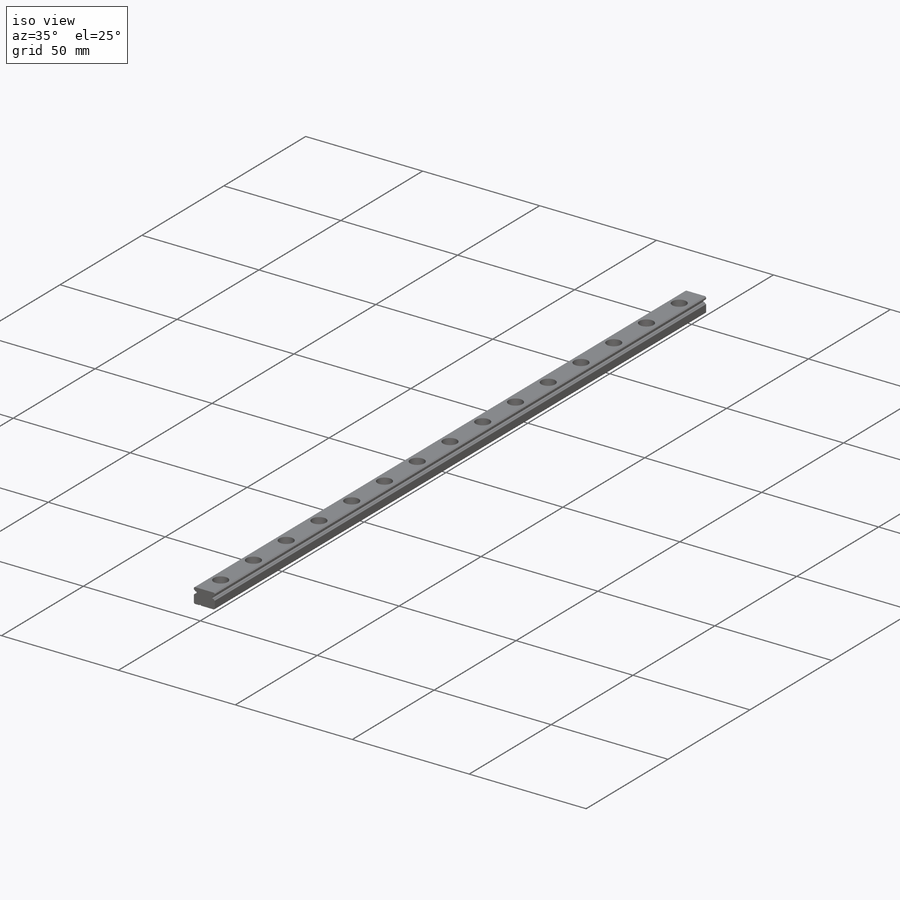
[diagram: iso view]
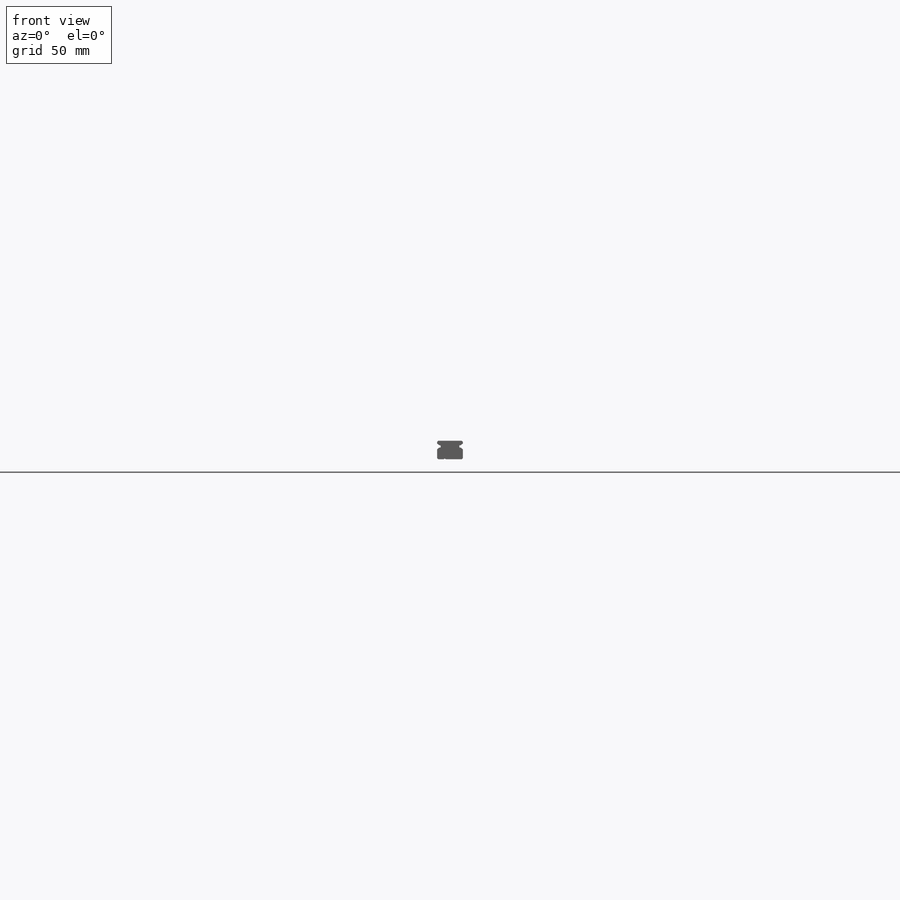
[diagram: front view]
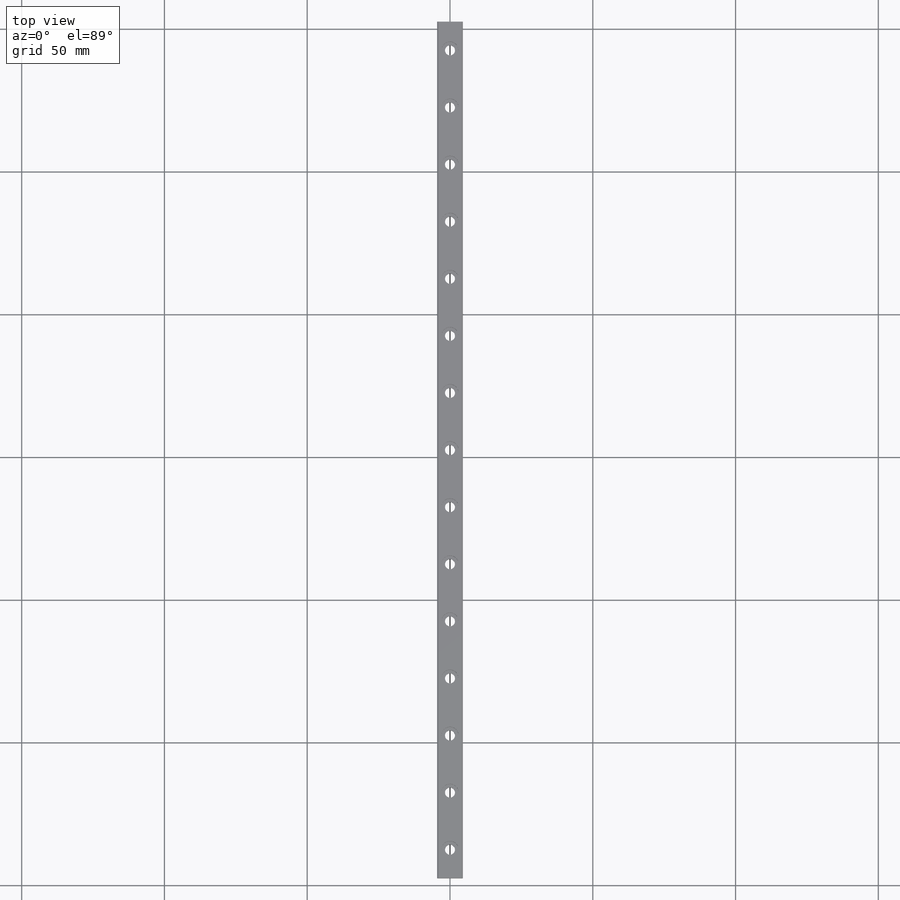
[diagram: top view]
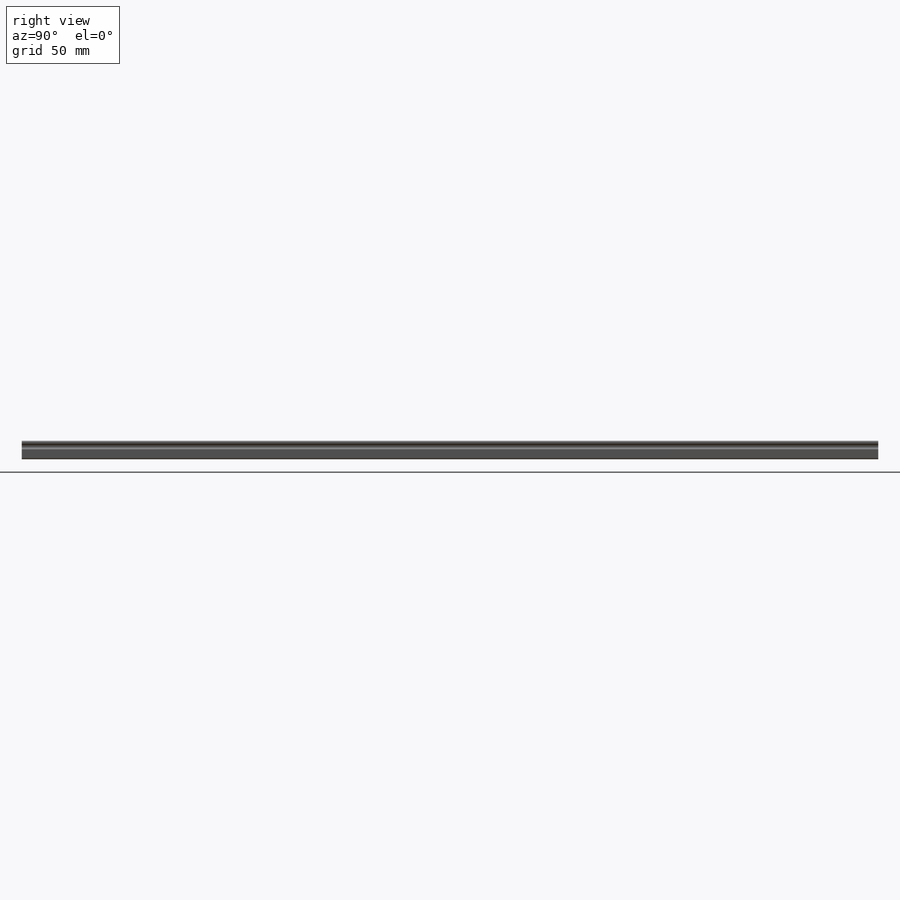
[diagram: right view]
SOLIDWORKS PART (.sldprt)
format: sldprt  version: not decoded by parser v0  size: 432,640 bytes
history: native  units: mm
features: sketch x10, cut_extrude x6, extrude x2, material x1, plane x1, hole x1, chamfer x1, fillet x1 (+13 scaffold rows collapsed)
feature tree (36):
  scaffold x13  (default folders/planes/origin — collapsed)
  material  "Material <not specified>"
  plane  "Plane1"  Offset=300mm
  sketch  "Sketch1"
  extrude  "Boss-Extrude1"  Depth=600mm
  sketch  "Sketch2"
  cut_extrude  "Cut-Extrude1"  Depth=600mm
  sketch  "Sketch3"
  cut_extrude  "Cut-Extrude2"  Depth=600mm
  sketch  "Sketch4"
  cut_extrude  "Cut-Extrude3"  Depth=600mm
  sketch  "Sketch5"
  cut_extrude  "Cut-Extrude4"  Depth=600mm
  sketch  "Sketch6"
  cut_extrude  "Cut-Extrude5"  Depth=600mm
  hole  "CBORE for M3 Hex Head Machine Screw1"  Diameter=3.5mm Depth=6.5mm
  sketch  "Sketch8"
  sketch  "Sketch7"  dims[hole-wizard template sketch: 41 standard entries collapsed; hole parameters kept: c12.Thru Hole Dia.=3.5mm c12.Thru Hole Depth=6.5mm c12.C'Bore Dia.=6.0mm c12.C'Bore Depth=3.5mm]
  chamfer  "Chamfer1"  Distance=0.4mm Angle=45deg
  fillet  "Fillet1"  Radius=0.15mm
  sketch  "Sketch9"
  cut_extrude  "Cut-Extrude6"  Depth=302.5mm
  sketch  "Sketch10"  dims[D1=0.0mm]
  extrude  "Boss-Extrude2"  Depth=2.5mm
decode coverage: 13 of 21 modeling features carry decoded parameters
note: ~ marks probable driven/reference dimensions
note: suppression state not decoded; provenance and decode notes live in map.json
